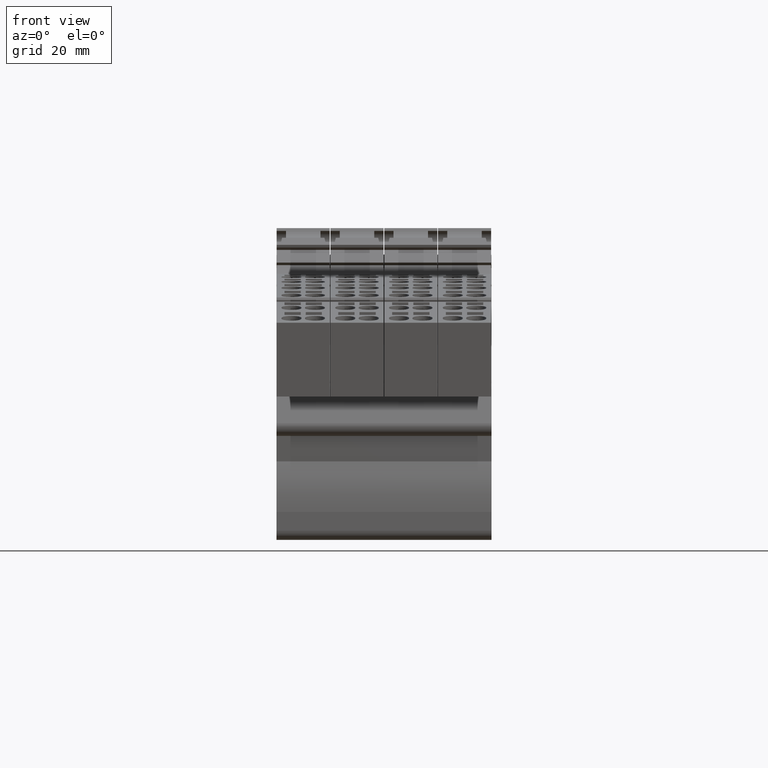
[diagram: clean part render]
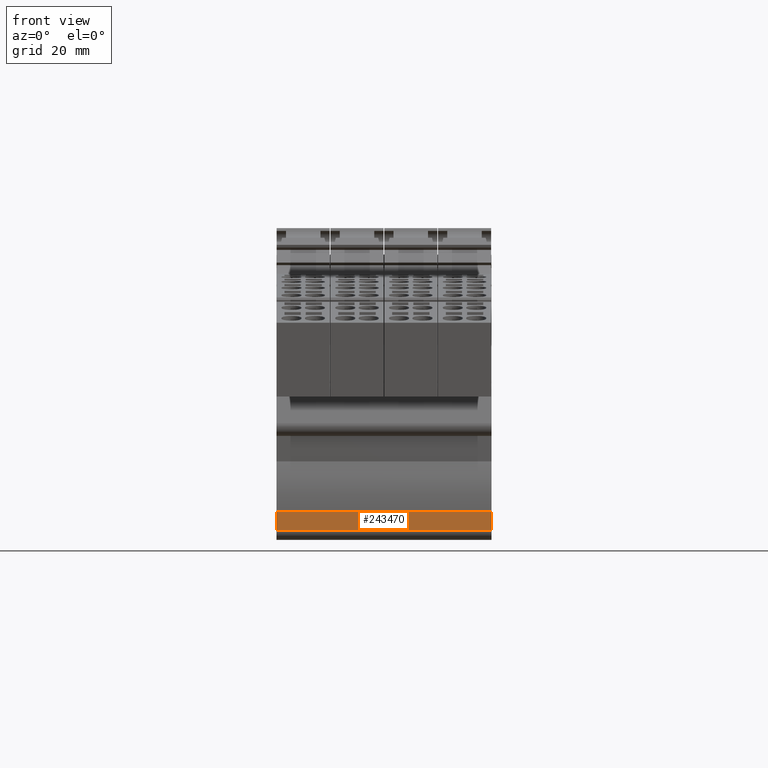
[diagram: same view with one face highlighted and labeled with its STEP entity id]
A machine part, front view. The second image highlights one B-rep face of the part: STEP entity #243470.
In plain terms, the highlighted planar face has unit normal (0, 0.999, -0.0436).
Its self-contained STEP definition (entity closure, byte-faithful):
#221240=CARTESIAN_POINT('',(176.619751021839,-60.8670393220623,36.45));
#221250=VERTEX_POINT('',#221240);
#221280=CARTESIAN_POINT('',(177.680974798041,-36.5610187575379,36.45));
#221290=DIRECTION('',(-0.0436193873653932,-0.999048221581855,0.));
#221300=VECTOR('',#221290,1.);
#221310=LINE('',#221280,#221300);
#221320=CARTESIAN_POINT('',(176.802689507967,-56.6770591260167,36.45));
#221330=VERTEX_POINT('',#221320);
#221340=EDGE_CURVE('',#221330,#221250,#221310,.T.);
#225630=CARTESIAN_POINT('',(176.802689507967,-56.6770591260167,-12.15));
#225640=VERTEX_POINT('',#225630);
#225670=CARTESIAN_POINT('',(177.680974798041,-36.5610187575379,-12.15));
#225680=DIRECTION('',(-0.0436193873653932,-0.999048221581855,0.));
#225690=VECTOR('',#225680,1.);
#225700=LINE('',#225670,#225690);
#225710=CARTESIAN_POINT('',(176.619751021839,-60.8670393220623,-12.15));
#225720=VERTEX_POINT('',#225710);
#225730=EDGE_CURVE('',#225640,#225720,#225700,.T.);
#243150=CARTESIAN_POINT('',(176.802689507967,-56.6770591260167,
6.14999999999999));
#243160=DIRECTION('',(0.,0.,1.));
#243170=VECTOR('',#243160,1.);
#243180=LINE('',#243150,#243170);
#243190=EDGE_CURVE('',#225640,#221330,#243180,.T.);
#243310=CARTESIAN_POINT('',(176.802689507967,-56.6770591260167,
6.14999999999999));
#243320=DIRECTION('',(0.999048221581855,-0.0436193873653932,0.));
#243330=DIRECTION('',(0.0436193873653932,0.999048221581855,0.));
#243340=AXIS2_PLACEMENT_3D('',#243310,#243320,#243330);
#243350=PLANE('',#243340);
#243360=ORIENTED_EDGE('',*,*,#225730,.T.);
#243370=ORIENTED_EDGE('',*,*,#243190,.F.);
#243380=ORIENTED_EDGE('',*,*,#221340,.F.);
#243390=CARTESIAN_POINT('',(176.619751021839,-60.8670393220623,
6.14999999999999));
#243400=DIRECTION('',(0.,0.,1.));
#243410=VECTOR('',#243400,1.);
#243420=LINE('',#243390,#243410);
#243430=EDGE_CURVE('',#225720,#221250,#243420,.T.);
#243440=ORIENTED_EDGE('',*,*,#243430,.T.);
#243450=EDGE_LOOP('',(#243440,#243380,#243370,#243360));
#243460=FACE_OUTER_BOUND('',#243450,.T.);
#243470=ADVANCED_FACE('',(#243460),#243350,.F.);